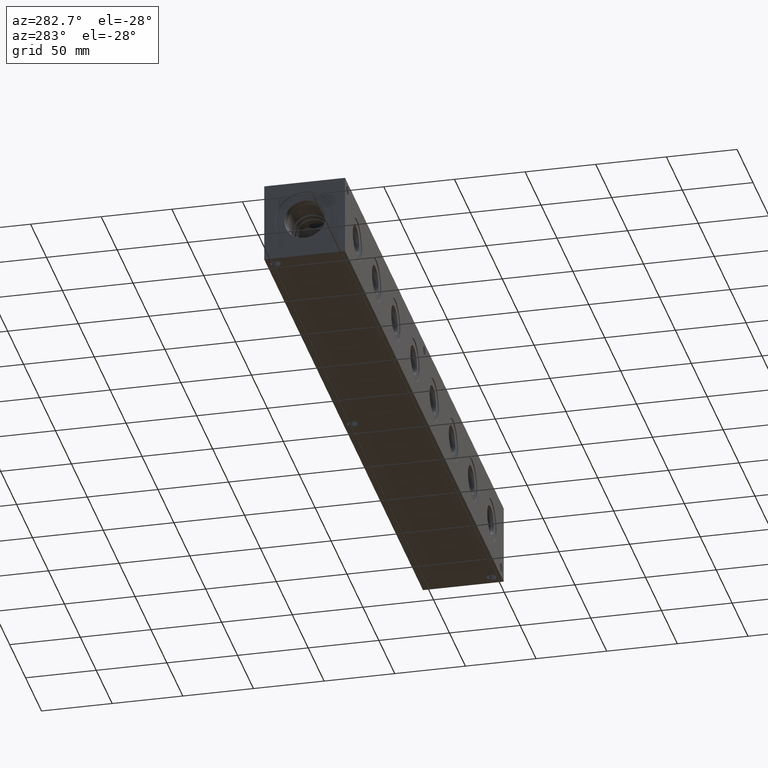
[diagram: clean part render]
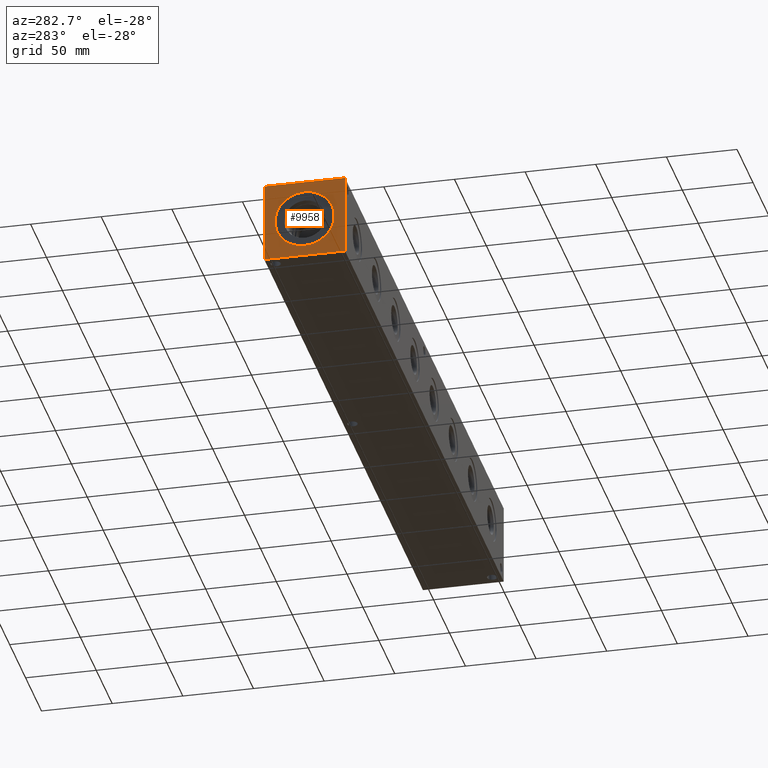
[diagram: same view with one face highlighted and labeled with its STEP entity id]
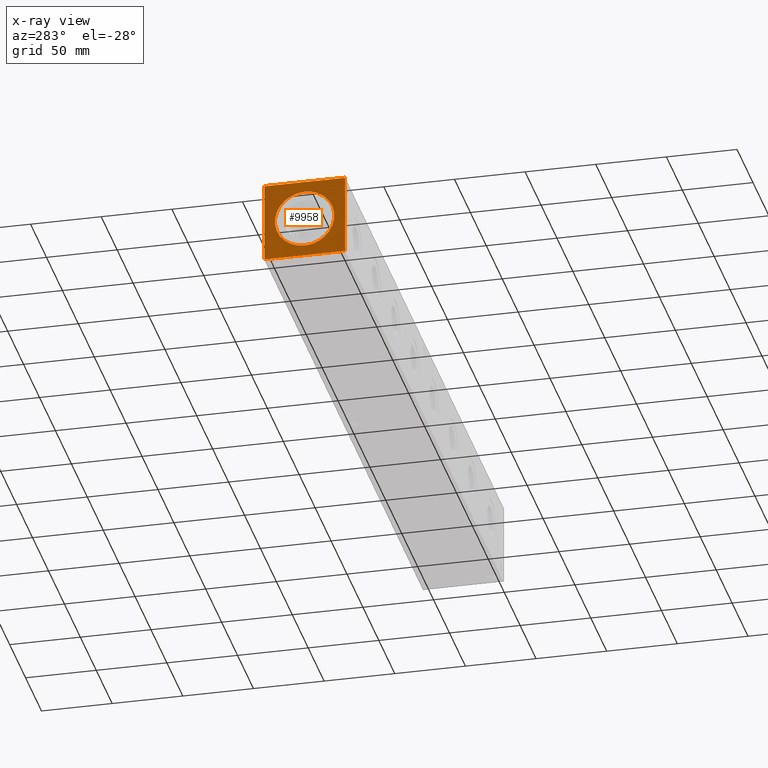
[diagram: x-ray of the same camera — body ghosted, the highlighted face saturated]
A machine part, auxiliary view. The second image highlights one B-rep face of the part: STEP entity #9958.
The next image is the same camera in x-ray: the body ghosted, the highlighted face saturated — about 0% of this face is hidden behind the body in this view.
In plain terms, the highlighted planar face has unit normal (-1, 0, 0).
Its self-contained STEP definition (entity closure, byte-faithful):
#500=CIRCLE('',#10690,21.0185);
#501=CIRCLE('',#10691,21.0185);
#588=FACE_BOUND('',#1954,.T.);
#837=PLANE('',#10704);
#1356=FACE_OUTER_BOUND('',#1953,.T.);
#1953=EDGE_LOOP('',(#8949,#8950,#8951,#8952));
#1954=EDGE_LOOP('',(#8953,#8954));
#2222=LINE('',#15518,#3006);
#2754=LINE('',#17626,#3538);
#2755=LINE('',#17627,#3539);
#2756=LINE('',#17628,#3540);
#3006=VECTOR('',#11058,10.);
#3538=VECTOR('',#12942,10.);
#3539=VECTOR('',#12943,10.);
#3540=VECTOR('',#12944,10.);
#4148=VERTEX_POINT('',#15511);
#4151=VERTEX_POINT('',#15516);
#4772=VERTEX_POINT('',#17595);
#4773=VERTEX_POINT('',#17596);
#4782=VERTEX_POINT('',#17624);
#4783=VERTEX_POINT('',#17625);
#5272=EDGE_CURVE('',#4151,#4148,#2222,.T.);
#6170=EDGE_CURVE('',#4772,#4773,#500,.T.);
#6171=EDGE_CURVE('',#4773,#4772,#501,.T.);
#6184=EDGE_CURVE('',#4782,#4783,#2754,.T.);
#6185=EDGE_CURVE('',#4783,#4148,#2755,.T.);
#6186=EDGE_CURVE('',#4782,#4151,#2756,.T.);
#8949=ORIENTED_EDGE('',*,*,#6184,.T.);
#8950=ORIENTED_EDGE('',*,*,#6185,.T.);
#8951=ORIENTED_EDGE('',*,*,#5272,.F.);
#8952=ORIENTED_EDGE('',*,*,#6186,.F.);
#8953=ORIENTED_EDGE('',*,*,#6170,.T.);
#8954=ORIENTED_EDGE('',*,*,#6171,.T.);
#9958=ADVANCED_FACE('',(#1356,#588),#837,.T.);
#10690=AXIS2_PLACEMENT_3D('',#17597,#12908,#12909);
#10691=AXIS2_PLACEMENT_3D('',#17598,#12910,#12911);
#10704=AXIS2_PLACEMENT_3D('',#17623,#12940,#12941);
#11058=DIRECTION('',(0.,-1.,0.));
#12908=DIRECTION('center_axis',(1.,0.,0.));
#12909=DIRECTION('ref_axis',(0.,0.,1.));
#12910=DIRECTION('center_axis',(1.,0.,0.));
#12911=DIRECTION('ref_axis',(0.,0.,1.));
#12940=DIRECTION('center_axis',(-1.,0.,0.));
#12941=DIRECTION('ref_axis',(0.,-1.,0.));
#12942=DIRECTION('',(0.,-1.,0.));
#12943=DIRECTION('',(0.,0.,1.));
#12944=DIRECTION('',(0.,0.,1.));
#15511=CARTESIAN_POINT('',(0.,0.,57.15));
#15516=CARTESIAN_POINT('',(0.,57.15,57.15));
#15518=CARTESIAN_POINT('',(0.,57.15,57.15));
#17595=CARTESIAN_POINT('',(0.,28.575,49.5935));
#17596=CARTESIAN_POINT('',(0.,28.575,7.55649999999999));
#17597=CARTESIAN_POINT('Origin',(0.,28.575,28.575));
#17598=CARTESIAN_POINT('Origin',(0.,28.575,28.575));
#17623=CARTESIAN_POINT('Origin',(0.,57.15,0.));
#17624=CARTESIAN_POINT('',(0.,57.15,0.));
#17625=CARTESIAN_POINT('',(0.,0.,0.));
#17626=CARTESIAN_POINT('',(0.,57.15,0.));
#17627=CARTESIAN_POINT('',(0.,0.,0.));
#17628=CARTESIAN_POINT('',(0.,57.15,0.));